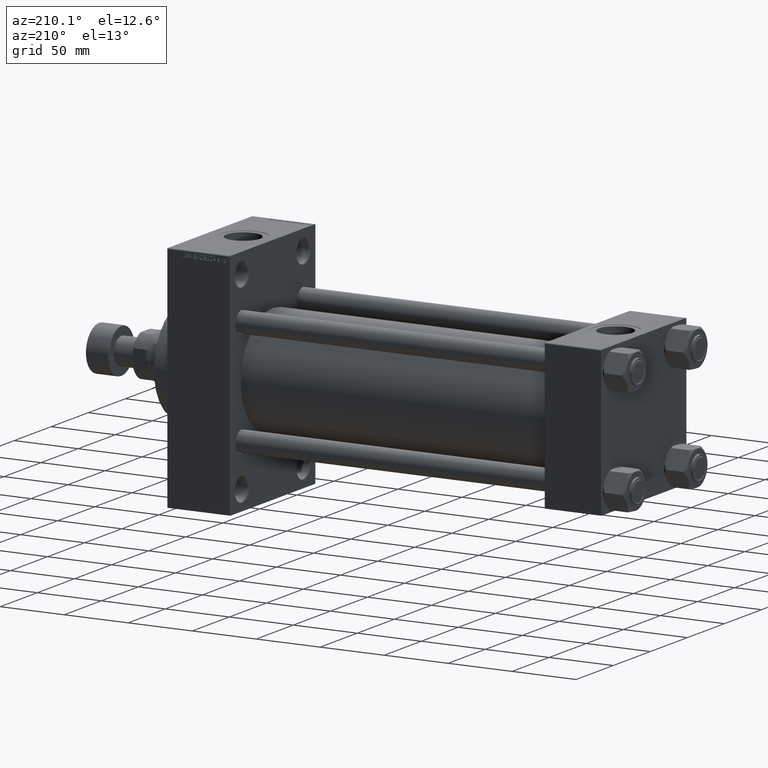
[diagram: clean part render]
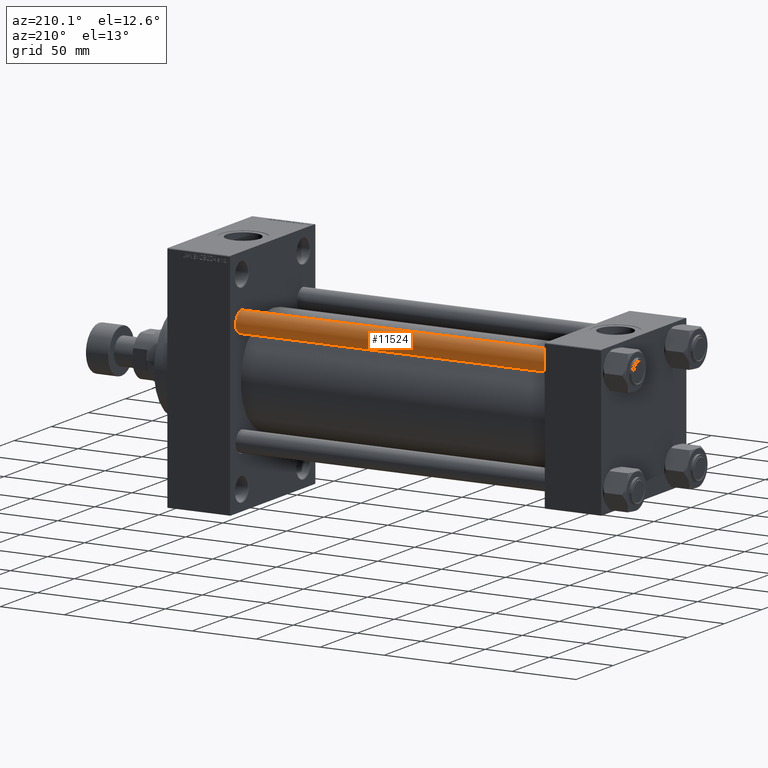
[diagram: same view with one face highlighted and labeled with its STEP entity id]
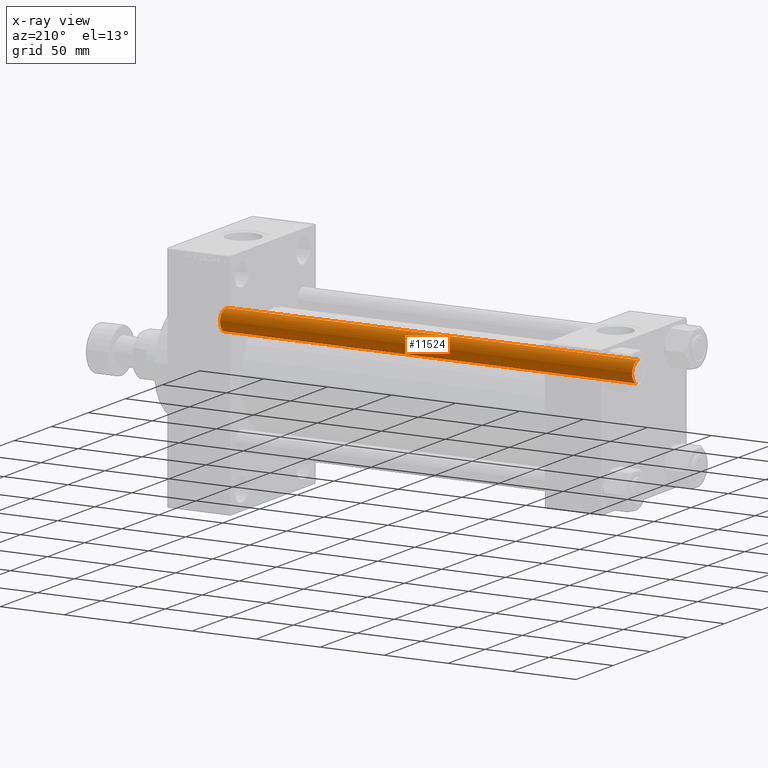
[diagram: x-ray of the same camera — body ghosted, the highlighted face saturated]
A machine part, auxiliary view. The second image highlights one B-rep face of the part: STEP entity #11524.
The next image is the same camera in x-ray: the body ghosted, the highlighted face saturated — about 0% of this face is hidden behind the body in this view.
In plain terms, the highlighted cylindrical surface (edge-blend (fillet) strip) has radius 8 mm, axis along (-1, -0, 0).
Its self-contained STEP definition (entity closure, byte-faithful):
#1509 = CARTESIAN_POINT ( 'NONE',  ( -8.000000000000000000, 0.000000000000000000, 0.5000000000000004441 ) ) ;
#1864 = VECTOR ( 'NONE', #44453, 1000.000000000000000 ) ;
#2353 = EDGE_CURVE ( 'NONE', #29818, #29755, #44403, .T. ) ;
#4145 = CARTESIAN_POINT ( 'NONE',  ( 0.000000000000000000, 0.000000000000000000, 322.5000000000000000 ) ) ;
#4857 = DIRECTION ( 'NONE',  ( 1.000000000000000000, 0.000000000000000000, 0.000000000000000000 ) ) ;
#11026 = EDGE_CURVE ( 'NONE', #43439, #29755, #47520, .T. ) ;
#11227 = DIRECTION ( 'NONE',  ( -0.000000000000000000, -0.000000000000000000, 1.000000000000000000 ) ) ;
#11524 = ADVANCED_FACE ( 'NONE', ( #39799 ), #29311, .T. ) ;
#11553 = ORIENTED_EDGE ( 'NONE', *, *, #2353, .F. ) ;
#12151 = DIRECTION ( 'NONE',  ( 0.000000000000000000, 0.000000000000000000, -1.000000000000000000 ) ) ;
#14410 = EDGE_CURVE ( 'NONE', #29818, #47957, #18125, .T. ) ;
#15559 = EDGE_LOOP ( 'NONE', ( #34418, #37864, #40362, #11553 ) ) ;
#18125 = CIRCLE ( 'NONE', #31321, 8.000000000000000000 ) ;
#18849 = CARTESIAN_POINT ( 'NONE',  ( -8.000000000000000000, 0.000000000000000000, 323.0000000000000000 ) ) ;
#21233 = EDGE_CURVE ( 'NONE', #47957, #43439, #33736, .T. ) ;
#25855 = DIRECTION ( 'NONE',  ( 1.000000000000000000, 0.000000000000000000, 0.000000000000000000 ) ) ;
#27323 = AXIS2_PLACEMENT_3D ( 'NONE', #29972, #11227, #25855 ) ;
#29311 = CYLINDRICAL_SURFACE ( 'NONE', #39773, 8.000000000000000000 ) ;
#29755 = VERTEX_POINT ( 'NONE', #1509 ) ;
#29818 = VERTEX_POINT ( 'NONE', #36038 ) ;
#29972 = CARTESIAN_POINT ( 'NONE',  ( 0.000000000000000000, 0.000000000000000000, 0.5000000000000004441 ) ) ;
#31321 = AXIS2_PLACEMENT_3D ( 'NONE', #4145, #12151, #4857 ) ;
#33736 = LINE ( 'NONE', #40565, #1864 ) ;
#34418 = ORIENTED_EDGE ( 'NONE', *, *, #14410, .T. ) ;
#35909 = DIRECTION ( 'NONE',  ( -0.000000000000000000, -0.000000000000000000, -1.000000000000000000 ) ) ;
#36038 = CARTESIAN_POINT ( 'NONE',  ( -8.000000000000000000, 0.000000000000000000, 322.5000000000000000 ) ) ;
#36867 = DIRECTION ( 'NONE',  ( -0.000000000000000000, -0.000000000000000000, -1.000000000000000000 ) ) ;
#37864 = ORIENTED_EDGE ( 'NONE', *, *, #21233, .T. ) ;
#39001 = VECTOR ( 'NONE', #36867, 1000.000000000000000 ) ;
#39773 = AXIS2_PLACEMENT_3D ( 'NONE', #40033, #35909, #43450 ) ;
#39799 = FACE_OUTER_BOUND ( 'NONE', #15559, .T. ) ;
#40033 = CARTESIAN_POINT ( 'NONE',  ( 0.000000000000000000, 0.000000000000000000, 323.0000000000000000 ) ) ;
#40362 = ORIENTED_EDGE ( 'NONE', *, *, #11026, .T. ) ;
#40565 = CARTESIAN_POINT ( 'NONE',  ( 8.000000000000000000, 9.797174393178825657E-16, 323.0000000000000000 ) ) ;
#42832 = CARTESIAN_POINT ( 'NONE',  ( 8.000000000000000000, 9.797174393178825657E-16, 322.5000000000000000 ) ) ;
#43439 = VERTEX_POINT ( 'NONE', #43955 ) ;
#43450 = DIRECTION ( 'NONE',  ( -1.000000000000000000, 0.000000000000000000, 0.000000000000000000 ) ) ;
#43955 = CARTESIAN_POINT ( 'NONE',  ( 8.000000000000000000, 9.797174393178825657E-16, 0.5000000000000004441 ) ) ;
#44403 = LINE ( 'NONE', #18849, #39001 ) ;
#44453 = DIRECTION ( 'NONE',  ( -0.000000000000000000, -0.000000000000000000, -1.000000000000000000 ) ) ;
#47520 = CIRCLE ( 'NONE', #27323, 8.000000000000000000 ) ;
#47957 = VERTEX_POINT ( 'NONE', #42832 ) ;